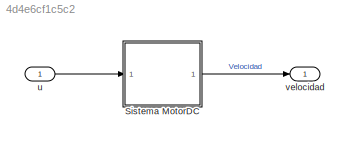
MODEL mdl_4d4e6cf1c5c2
KIND model
CONFIG AbsTol = auto
CONFIG EnableMultiTasking = on
CONFIG FixedStep = auto
CONFIG MaxStep = auto
CONFIG MinStep = auto
CONFIG RelTol = 1e-3
CONFIG SampleTimeConstraint = Unconstrained
CONFIG SolverName = ode45
CONFIG StartTime = 0.0
CONFIG StopTime = 20.0
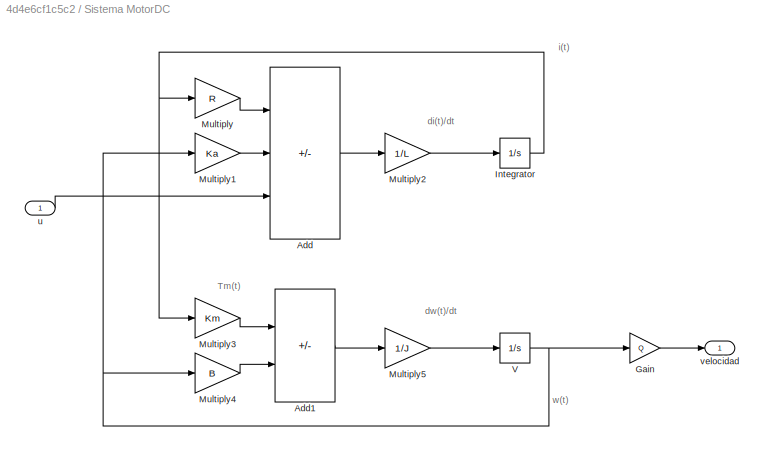
BLOCK [SubSystem] Sistema MotorDC
  Ports = [1, 1]
  RequestExecContextInheritance = off
BLOCK [Sum] Sistema MotorDC/Add
  IconShape = rectangular
  Inputs = --+
  Ports = [3, 1]
BLOCK [Sum] Sistema MotorDC/Add1
  IconShape = rectangular
  Inputs = +-
  Ports = [2, 1]
BLOCK [Gain] Sistema MotorDC/Gain
  Gain = Q
BLOCK [Integrator] Sistema MotorDC/Integrator
  Ports = [1, 1]
BLOCK [Gain] Sistema MotorDC/Multiply
  Gain = R
BLOCK [Gain] Sistema MotorDC/Multiply1
  Gain = Ka
BLOCK [Gain] Sistema MotorDC/Multiply2
  Gain = 1/L
BLOCK [Gain] Sistema MotorDC/Multiply3
  Gain = Km
BLOCK [Gain] Sistema MotorDC/Multiply4
  Gain = B
BLOCK [Gain] Sistema MotorDC/Multiply5
  Gain = 1/J
BLOCK [Integrator] Sistema MotorDC/V
  LimitOutput = on
  LowerSaturationLimit = 0
  Ports = [1, 1]
BLOCK [Inport] Sistema MotorDC/u
BLOCK [Outport] Sistema MotorDC/velocidad
  VectorParamsAs1DForOutWhenUnconnected = off
BLOCK [Inport] u
BLOCK [Outport] velocidad
ANNOTATION Sistema MotorDC: Tm(t)
ANNOTATION Sistema MotorDC: di(t)/dt
ANNOTATION Sistema MotorDC: dw(t)/dt
ANNOTATION Sistema MotorDC: i(t)
ANNOTATION Sistema MotorDC: w(t)
LINE Sistema MotorDC/Add1:1 -> Sistema MotorDC/Multiply5:1
LINE Sistema MotorDC/Add:1 -> Sistema MotorDC/Multiply2:1
LINE Sistema MotorDC/Gain:1 -> Sistema MotorDC/velocidad:1
NET Sistema MotorDC/Integrator:1 -> Sistema MotorDC/Multiply3:1, Sistema MotorDC/Multiply:1
LINE Sistema MotorDC/Multiply1:1 -> Sistema MotorDC/Add:2
LINE Sistema MotorDC/Multiply2:1 -> Sistema MotorDC/Integrator:1
LINE Sistema MotorDC/Multiply3:1 -> Sistema MotorDC/Add1:1
LINE Sistema MotorDC/Multiply4:1 -> Sistema MotorDC/Add1:2
LINE Sistema MotorDC/Multiply5:1 -> Sistema MotorDC/V:1
LINE Sistema MotorDC/Multiply:1 -> Sistema MotorDC/Add:1
NET Sistema MotorDC/V:1 -> Sistema MotorDC/Gain:1, Sistema MotorDC/Multiply1:1, Sistema MotorDC/Multiply4:1
LINE Sistema MotorDC/u:1 -> Sistema MotorDC/Add:3
LINE Sistema MotorDC:1 -> velocidad:1
LINE u:1 -> Sistema MotorDC:1
note: NET lines group one-source signal fan-out (src -> all destinations, sorted); 1:1 wires keep LINE
